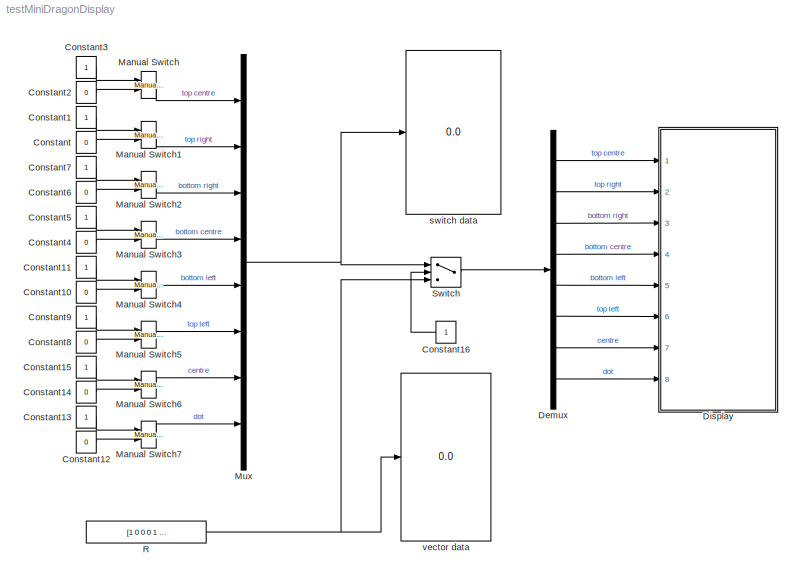
MODEL testMiniDragonDisplay
KIND model
BLOCK [Constant] Constant
  SID = 1
  Value = 0
BLOCK [Constant] Constant1
  SID = 2
BLOCK [Constant] Constant10
  SID = 3
  Value = 0
BLOCK [Constant] Constant11
  SID = 4
BLOCK [Constant] Constant12
  SID = 5
  Value = 0
BLOCK [Constant] Constant13
  SID = 6
BLOCK [Constant] Constant14
  SID = 7
  Value = 0
BLOCK [Constant] Constant15
  SID = 8
BLOCK [Constant] Constant16
  SID = 9
BLOCK [Constant] Constant2
  SID = 10
  Value = 0
BLOCK [Constant] Constant3
  SID = 11
BLOCK [Constant] Constant4
  SID = 12
  Value = 0
BLOCK [Constant] Constant5
  SID = 13
BLOCK [Constant] Constant6
  SID = 14
  Value = 0
BLOCK [Constant] Constant7
  SID = 15
BLOCK [Constant] Constant8
  SID = 16
  Value = 0
BLOCK [Constant] Constant9
  SID = 17
BLOCK [Demux] Demux
  Outputs = 8
  Ports = [1, 8]
  SID = 18
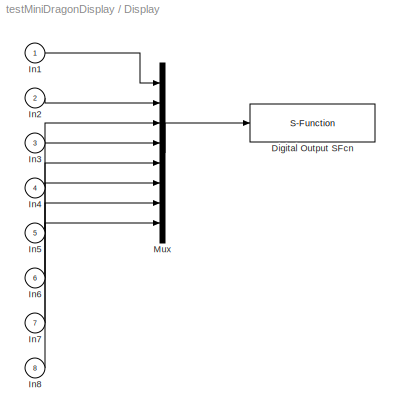
BLOCK [SubSystem] Display
  Ports = [8]
  RequestExecContextInheritance = off
  SID = 19
  ShowPortLabels = none
  Tag = mcTarget_digOut
BLOCK [S-Function] Display/Digital Output SFcn
  EnableBusSupport = off
  FunctionName = digOut_sfcn_9S12
  Parameters = sampletime, port, pins, Von, Voff
  Ports = [1]
  SFcnIsStateOwnerBlock = off
  SFunctionDeploymentMode = off
  SID = 19:9
  Tag = mcTarget_digOut
BLOCK [Inport] Display/In1
  IconDisplay = Port number
  SID = 19:1
BLOCK [Inport] Display/In2
  IconDisplay = Port number
  Port = 2
  SID = 19:2
BLOCK [Inport] Display/In3
  IconDisplay = Port number
  Port = 3
  SID = 19:3
BLOCK [Inport] Display/In4
  IconDisplay = Port number
  Port = 4
  SID = 19:4
BLOCK [Inport] Display/In5
  IconDisplay = Port number
  Port = 5
  SID = 19:5
BLOCK [Inport] Display/In6
  IconDisplay = Port number
  Port = 6
  SID = 19:6
BLOCK [Inport] Display/In7
  IconDisplay = Port number
  Port = 7
  SID = 19:7
BLOCK [Inport] Display/In8
  IconDisplay = Port number
  Port = 8
  SID = 19:8
BLOCK [Mux] Display/Mux
  DisplayOption = bar
  Inputs = 8
  Ports = [8, 1]
  SID = 19:10
BLOCK [Reference] Manual Switch  REF=simulink/Signal\nRouting/Manual Switch
  FunctionWithSeparateData = off
  Ports = [2, 1]
  RTWMemSecDataConstants = Inherit from model
  RTWMemSecDataInternal = Inherit from model
  RTWMemSecDataParameters = Inherit from model
  RTWMemSecFuncExecute = Inherit from model
  RTWMemSecFuncInitTerm = Inherit from model
  SID = 20
  ShowPortLabels = FromPortIcon
  SourceBlock = simulink/Signal\nRouting/Manual Switch
  SourceProductBaseCode = SL
  SourceProductName = Simulink
  SourceType = Manual Switch
  SystemSampleTime = -1
  action = 0
  sw = 1
  varsize = off
BLOCK [Reference] Manual Switch1  REF=simulink/Signal\nRouting/Manual Switch
  FunctionWithSeparateData = off
  Ports = [2, 1]
  RTWMemSecDataConstants = Inherit from model
  RTWMemSecDataInternal = Inherit from model
  RTWMemSecDataParameters = Inherit from model
  RTWMemSecFuncExecute = Inherit from model
  RTWMemSecFuncInitTerm = Inherit from model
  SID = 21
  ShowPortLabels = FromPortIcon
  SourceBlock = simulink/Signal\nRouting/Manual Switch
  SourceProductBaseCode = SL
  SourceProductName = Simulink
  SourceType = Manual Switch
  SystemSampleTime = -1
  action = 0
  sw = 1
  varsize = off
BLOCK [Reference] Manual Switch2  REF=simulink/Signal\nRouting/Manual Switch
  FunctionWithSeparateData = off
  Ports = [2, 1]
  RTWMemSecDataConstants = Inherit from model
  RTWMemSecDataInternal = Inherit from model
  RTWMemSecDataParameters = Inherit from model
  RTWMemSecFuncExecute = Inherit from model
  RTWMemSecFuncInitTerm = Inherit from model
  SID = 22
  ShowPortLabels = FromPortIcon
  SourceBlock = simulink/Signal\nRouting/Manual Switch
  SourceProductBaseCode = SL
  SourceProductName = Simulink
  SourceType = Manual Switch
  SystemSampleTime = -1
  action = 0
  sw = 1
  varsize = off
BLOCK [Reference] Manual Switch3  REF=simulink/Signal\nRouting/Manual Switch
  FunctionWithSeparateData = off
  Ports = [2, 1]
  RTWMemSecDataConstants = Inherit from model
  RTWMemSecDataInternal = Inherit from model
  RTWMemSecDataParameters = Inherit from model
  RTWMemSecFuncExecute = Inherit from model
  RTWMemSecFuncInitTerm = Inherit from model
  SID = 23
  ShowPortLabels = FromPortIcon
  SourceBlock = simulink/Signal\nRouting/Manual Switch
  SourceProductBaseCode = SL
  SourceProductName = Simulink
  SourceType = Manual Switch
  SystemSampleTime = -1
  action = 0
  sw = 1
  varsize = off
BLOCK [Reference] Manual Switch4  REF=simulink/Signal\nRouting/Manual Switch
  FunctionWithSeparateData = off
  Ports = [2, 1]
  RTWMemSecDataConstants = Inherit from model
  RTWMemSecDataInternal = Inherit from model
  RTWMemSecDataParameters = Inherit from model
  RTWMemSecFuncExecute = Inherit from model
  RTWMemSecFuncInitTerm = Inherit from model
  SID = 24
  ShowPortLabels = FromPortIcon
  SourceBlock = simulink/Signal\nRouting/Manual Switch
  SourceProductBaseCode = SL
  SourceProductName = Simulink
  SourceType = Manual Switch
  SystemSampleTime = -1
  action = 0
  sw = 1
  varsize = off
BLOCK [Reference] Manual Switch5  REF=simulink/Signal\nRouting/Manual Switch
  FunctionWithSeparateData = off
  Ports = [2, 1]
  RTWMemSecDataConstants = Inherit from model
  RTWMemSecDataInternal = Inherit from model
  RTWMemSecDataParameters = Inherit from model
  RTWMemSecFuncExecute = Inherit from model
  RTWMemSecFuncInitTerm = Inherit from model
  SID = 25
  ShowPortLabels = FromPortIcon
  SourceBlock = simulink/Signal\nRouting/Manual Switch
  SourceProductBaseCode = SL
  SourceProductName = Simulink
  SourceType = Manual Switch
  SystemSampleTime = -1
  action = 0
  sw = 1
  varsize = off
BLOCK [Reference] Manual Switch6  REF=simulink/Signal\nRouting/Manual Switch
  FunctionWithSeparateData = off
  Ports = [2, 1]
  RTWMemSecDataConstants = Inherit from model
  RTWMemSecDataInternal = Inherit from model
  RTWMemSecDataParameters = Inherit from model
  RTWMemSecFuncExecute = Inherit from model
  RTWMemSecFuncInitTerm = Inherit from model
  SID = 26
  ShowPortLabels = FromPortIcon
  SourceBlock = simulink/Signal\nRouting/Manual Switch
  SourceProductBaseCode = SL
  SourceProductName = Simulink
  SourceType = Manual Switch
  SystemSampleTime = -1
  action = 0
  sw = 1
  varsize = off
BLOCK [Reference] Manual Switch7  REF=simulink/Signal\nRouting/Manual Switch
  FunctionWithSeparateData = off
  Ports = [2, 1]
  RTWMemSecDataConstants = Inherit from model
  RTWMemSecDataInternal = Inherit from model
  RTWMemSecDataParameters = Inherit from model
  RTWMemSecFuncExecute = Inherit from model
  RTWMemSecFuncInitTerm = Inherit from model
  SID = 27
  ShowPortLabels = FromPortIcon
  SourceBlock = simulink/Signal\nRouting/Manual Switch
  SourceProductBaseCode = SL
  SourceProductName = Simulink
  SourceType = Manual Switch
  SystemSampleTime = -1
  action = 0
  sw = 0
  varsize = off
BLOCK [Mux] Mux
  DisplayOption = bar
  Inputs = 8
  Ports = [8, 1]
  SID = 28
BLOCK [Constant] R
  OutDataTypeStr = double
  SID = 29
  Value = [1 0 0 0 1 1 1 1]
BLOCK [Switch] Switch
  InputSameDT = off
  SID = 30
BLOCK [Display] switch data
  Decimation = 1
  Ports = [1]
  SID = 31
BLOCK [Display] vector data
  Decimation = 1
  Ports = [1]
  SID = 32
LINE Constant10:1 -> Manual Switch4:2
LINE Constant11:1 -> Manual Switch4:1
LINE Constant12:1 -> Manual Switch7:2
LINE Constant13:1 -> Manual Switch7:1
LINE Constant14:1 -> Manual Switch6:2
LINE Constant15:1 -> Manual Switch6:1
LINE Constant16:1 -> Switch:2
LINE Constant1:1 -> Manual Switch1:1
LINE Constant2:1 -> Manual Switch:2
LINE Constant3:1 -> Manual Switch:1
LINE Constant4:1 -> Manual Switch3:2
LINE Constant5:1 -> Manual Switch3:1
LINE Constant6:1 -> Manual Switch2:2
LINE Constant7:1 -> Manual Switch2:1
LINE Constant8:1 -> Manual Switch5:2
LINE Constant9:1 -> Manual Switch5:1
LINE Constant:1 -> Manual Switch1:2
LINE Demux:1 -> Display:1
LINE Demux:2 -> Display:2
LINE Demux:3 -> Display:3
LINE Demux:4 -> Display:4
LINE Demux:5 -> Display:5
LINE Demux:6 -> Display:6
LINE Demux:7 -> Display:7
LINE Demux:8 -> Display:8
LINE Display/In1:1 -> Display/Mux:1
LINE Display/In2:1 -> Display/Mux:2
LINE Display/In3:1 -> Display/Mux:3
LINE Display/In4:1 -> Display/Mux:4
LINE Display/In5:1 -> Display/Mux:5
LINE Display/In6:1 -> Display/Mux:6
LINE Display/In7:1 -> Display/Mux:7
LINE Display/In8:1 -> Display/Mux:8
LINE Display/Mux:1 -> Display/Digital Output SFcn:1
LINE Manual Switch1:1 -> Mux:2
LINE Manual Switch2:1 -> Mux:3
LINE Manual Switch3:1 -> Mux:4
LINE Manual Switch4:1 -> Mux:5
LINE Manual Switch5:1 -> Mux:6
LINE Manual Switch6:1 -> Mux:7
LINE Manual Switch7:1 -> Mux:8
LINE Manual Switch:1 -> Mux:1
NET Mux:1 -> Switch:1, switch data:1
NET R:1 -> Switch:3, vector data:1
LINE Switch:1 -> Demux:1
note: NET lines group one-source signal fan-out (src -> all destinations, sorted); 1:1 wires keep LINE
